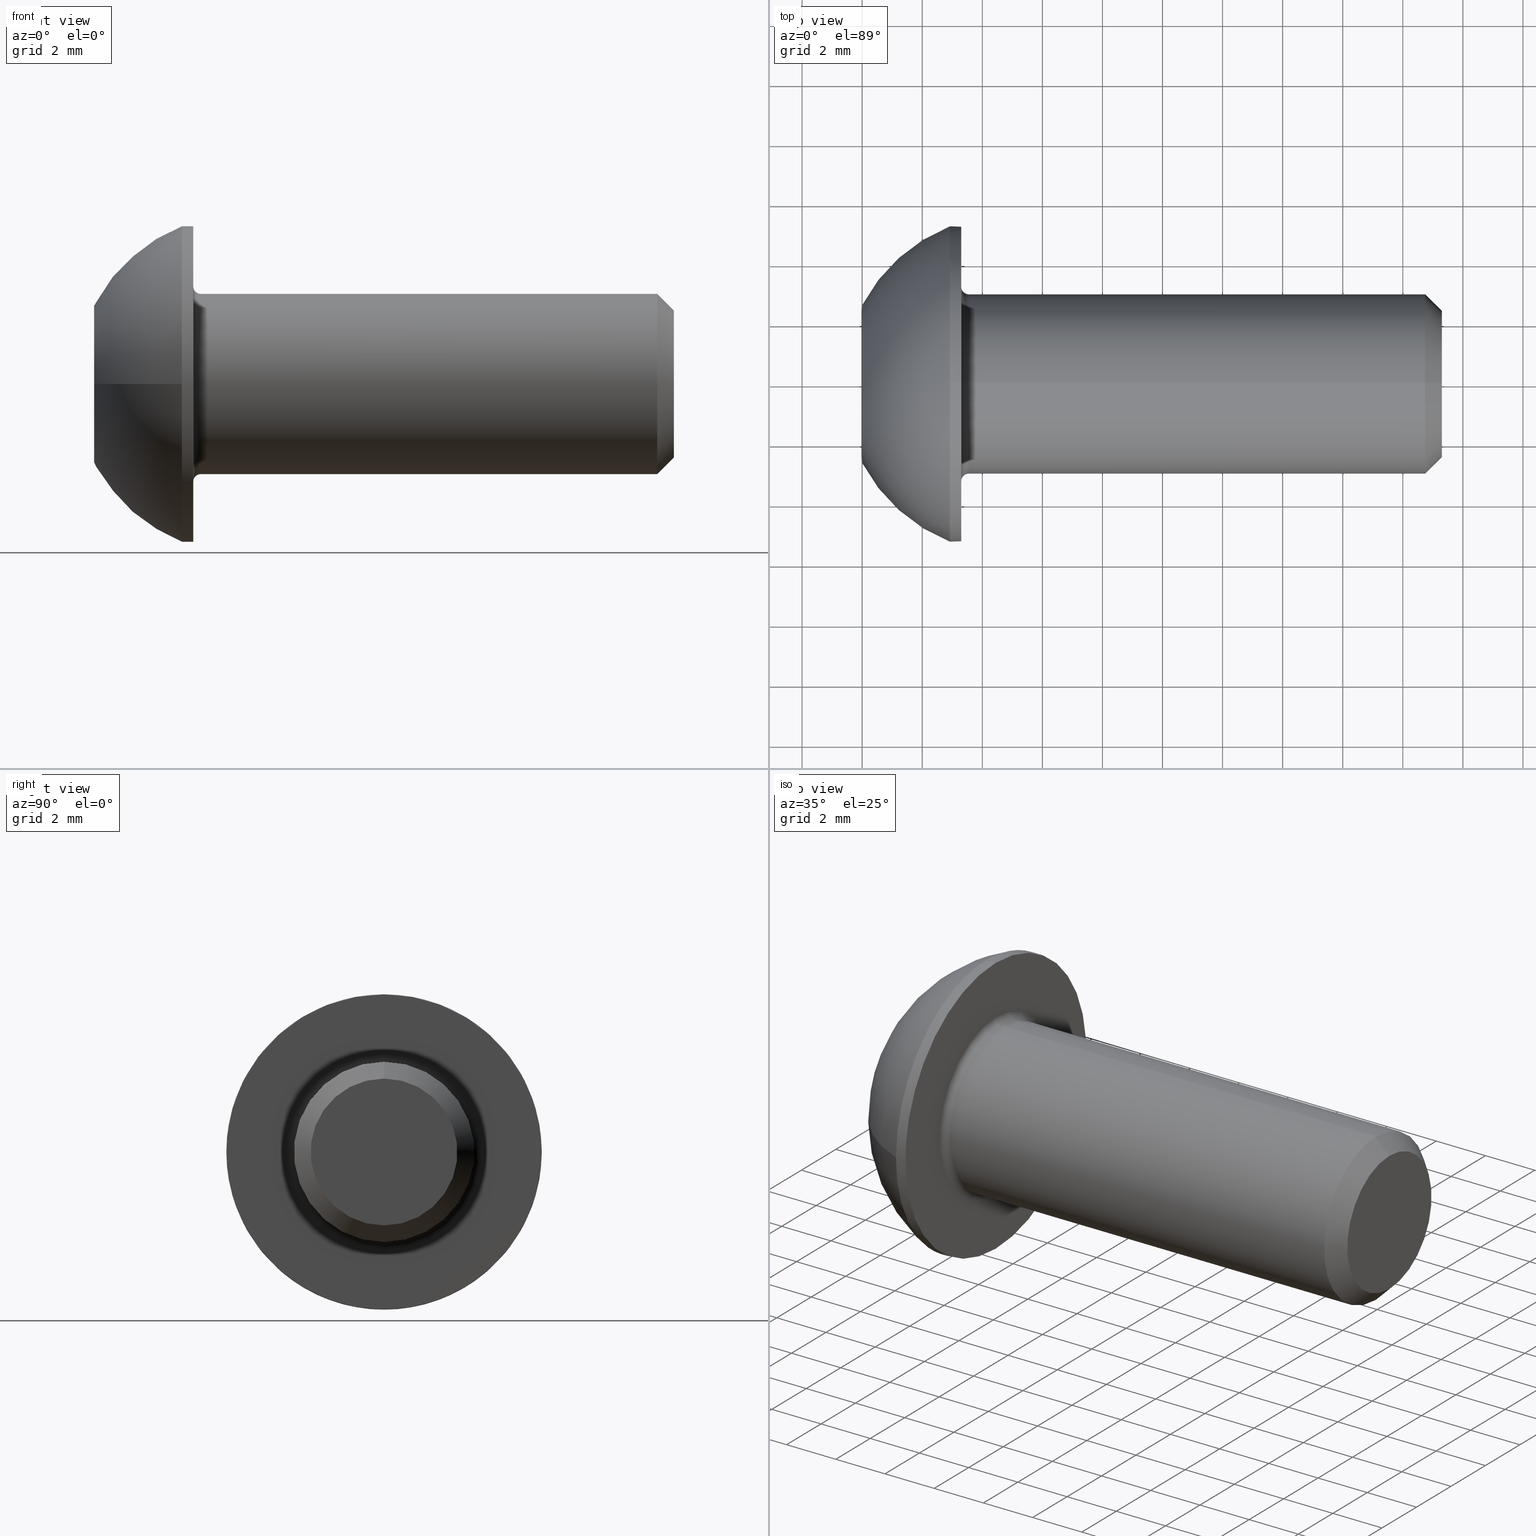
[diagram: canonical four-view strip — front | top / right | iso, engineering-drawing reading convention]
A machine part, canonical four-view strip (front | top / right | iso — engineering-drawing reading convention). The complete STEP part file that produces these views, byte-faithful:
ISO-10303-21;
HEADER;
FILE_DESCRIPTION (( 'STEP AP214' ),
    '1' );
FILE_NAME ('J00.404.006.016.STEP',
    '2024-06-19T13:16:53',
    ( '' ),
    ( '' ),
    'SwSTEP 2.0',
    'SolidWorks 2022',
    '' );
FILE_SCHEMA (( 'AUTOMOTIVE_DESIGN' ));
ENDSEC;

DATA;
#1 = CARTESIAN_POINT ( 'NONE',  ( 19.30000000000000426, 0.000000000000000000, 2.445499999999999563 ) ) ;
#2 = PLANE ( 'NONE',  #251 ) ;
#3 = ADVANCED_FACE ( 'NONE', ( #510 ), #441, .T. ) ;
#4 = ORIENTED_EDGE ( 'NONE', *, *, #465, .T. ) ;
#5 = CARTESIAN_POINT ( 'NONE',  ( 0.000000000000000000, -1.154700538379250796, -2.000000000000000000 ) ) ;
#6 = AXIS2_PLACEMENT_3D ( 'NONE', #772, #754, #289 ) ;
#7 = LINE ( 'NONE', #725, #98 ) ;
#8 = EDGE_LOOP ( 'NONE', ( #663, #534, #306, #684, #52 ) ) ;
#9 = DIRECTION ( 'NONE',  ( 0.000000000000000000, 0.4999999999999979461, 0.8660254037844397068 ) ) ;
#10 = FACE_OUTER_BOUND ( 'NONE', #354, .T. ) ;
#11 = EDGE_CURVE ( 'NONE', #89, #560, #204, .T. ) ;
#12 = CARTESIAN_POINT ( 'NONE',  ( 2.080000000000000071, -7.511572993685797128E-16, -2.000000000000000444 ) ) ;
#13 = DIRECTION ( 'NONE',  ( -1.000000000000000000, -0.000000000000000000, -0.000000000000000000 ) ) ;
#14 = CARTESIAN_POINT ( 'NONE',  ( 3.234700538379264856, 0.000000000000000000, 0.000000000000000000 ) ) ;
#15 = ORIENTED_EDGE ( 'NONE', *, *, #234, .F. ) ;
#16 = DIRECTION ( 'NONE',  ( 0.000000000000000000, -0.4999999999999979461, 0.8660254037844398178 ) ) ;
#17 = ADVANCED_FACE ( 'NONE', ( #271 ), #429, .F. ) ;
#18 = CONICAL_SURFACE ( 'NONE', #72, 1732.050807568857181, 1.047197551196592746 ) ;
#19 = DIRECTION ( 'NONE',  ( -1.000000000000000000, -0.000000000000000000, -0.000000000000000000 ) ) ;
#20 = VECTOR ( 'NONE', #653, 1000.000000000000000 ) ;
#21 = AXIS2_PLACEMENT_3D ( 'NONE', #49, #119, #108 ) ;
#22 = CARTESIAN_POINT ( 'NONE',  ( -996.7652994616207707, 0.000000000000000000, 0.000000000000000000 ) ) ;
#23 =( NAMED_UNIT ( * ) SI_UNIT ( $, .STERADIAN. ) SOLID_ANGLE_UNIT ( ) );
#24 = EDGE_CURVE ( 'NONE', #571, #531, #747, .T. ) ;
#25 = DIRECTION ( 'NONE',  ( 1.000000000000000000, 0.000000000000000000, -0.000000000000000000 ) ) ;
#26 = ORIENTED_EDGE ( 'NONE', *, *, #90, .F. ) ;
#27 = DIRECTION ( 'NONE',  ( 0.000000000000000000, 1.000000000000000000, 0.000000000000000000 ) ) ;
#28 = EDGE_CURVE ( 'NONE', #362, #648, #325, .T. ) ;
#29 = DIRECTION ( 'NONE',  ( -1.000000000000000000, -0.000000000000000000, -0.000000000000000000 ) ) ;
#30 = ORIENTED_EDGE ( 'NONE', *, *, #635, .T. ) ;
#31 = SHAPE_DEFINITION_REPRESENTATION ( #188, #286 ) ;
#32 = AXIS2_PLACEMENT_3D ( 'NONE', #377, #19, #558 ) ;
#33 = VECTOR ( 'NONE', #427, 1000.000000000000000 ) ;
#34 = FACE_OUTER_BOUND ( 'NONE', #485, .T. ) ;
#35 = VECTOR ( 'NONE', #128, 1000.000000000000000 ) ;
#36 = ORIENTED_EDGE ( 'NONE', *, *, #575, .F. ) ;
#37 = DIRECTION ( 'NONE',  ( 0.000000000000000000, 0.8660254037844398178, 0.4999999999999979461 ) ) ;
#38 = CARTESIAN_POINT ( 'NONE',  ( 2.080000000000000071, -1.154700538379250796, -2.000000000000000000 ) ) ;
#39 = EDGE_LOOP ( 'NONE', ( #375, #667 ) ) ;
#40 = ADVANCED_FACE ( 'NONE', ( #393 ), #330, .F. ) ;
#41 = CYLINDRICAL_SURFACE ( 'NONE', #738, 2.999999999999992895 ) ;
#42 = CARTESIAN_POINT ( 'NONE',  ( 0.000000000000000000, 0.000000000000000000, 5.249999999999996447 ) ) ;
#43 = ORIENTED_EDGE ( 'NONE', *, *, #418, .F. ) ;
#44 = EDGE_CURVE ( 'NONE', #146, #476, #410, .T. ) ;
#45 = CARTESIAN_POINT ( 'NONE',  ( 2.080000000000000071, 1.154700538379252794, -2.000000000000000888 ) ) ;
#46 = VECTOR ( 'NONE', #262, 1000.000000000000227 ) ;
#47 = AXIS2_PLACEMENT_3D ( 'NONE', #597, #423, #358 ) ;
#48 = ORIENTED_EDGE ( 'NONE', *, *, #595, .F. ) ;
#49 = CARTESIAN_POINT ( 'NONE',  ( 2.919999999999999929, 0.000000000000000000, 0.000000000000000000 ) ) ;
#50 = ADVANCED_FACE ( 'NONE', ( #499, #214 ), #503, .T. ) ;
#51 = ADVANCED_FACE ( 'NONE', ( #10 ), #18, .F. ) ;
#52 = ORIENTED_EDGE ( 'NONE', *, *, #183, .T. ) ;
#53 = CYLINDRICAL_SURFACE ( 'NONE', #590, 5.249999999999996447 ) ;
#54 = EDGE_CURVE ( 'NONE', #161, #612, #260, .T. ) ;
#55 = ORIENTED_EDGE ( 'NONE', *, *, #110, .F. ) ;
#56 = CARTESIAN_POINT ( 'NONE',  ( 0.000000000000000000, 1.154700538379252572, 2.000000000000000444 ) ) ;
#57 = DIRECTION ( 'NONE',  ( 1.000000000000000000, 0.000000000000000000, 0.000000000000000000 ) ) ;
#58 = ORIENTED_EDGE ( 'NONE', *, *, #293, .F. ) ;
#59 = CIRCLE ( 'NONE', #100, 2.000000000000000000 ) ;
#60 = DIRECTION ( 'NONE',  ( -1.000000000000000000, -0.000000000000000000, -0.000000000000000000 ) ) ;
#61 = DIRECTION ( 'NONE',  ( 0.000000000000000000, -1.000000000000000000, 0.000000000000000000 ) ) ;
#62 = UNCERTAINTY_MEASURE_WITH_UNIT (LENGTH_MEASURE( 1.000000000000000082E-05 ), #346, 'distance_accuracy_value', 'NONE');
#63 = ORIENTED_EDGE ( 'NONE', *, *, #102, .F. ) ;
#64 = DIRECTION ( 'NONE',  ( 0.000000000000000000, 0.000000000000000000, 1.000000000000000000 ) ) ;
#65 = EDGE_CURVE ( 'NONE', #689, #107, #737, .T. ) ;
#66 = CARTESIAN_POINT ( 'NONE',  ( 3.550000000000000266, 0.000000000000000000, 2.999999999999992895 ) ) ;
#67 = ORIENTED_EDGE ( 'NONE', *, *, #54, .T. ) ;
#68 = DIRECTION ( 'NONE',  ( 0.000000000000000000, 5.633679745264346614E-16, -1.000000000000000000 ) ) ;
#69 = CYLINDRICAL_SURFACE ( 'NONE', #380, 5.249999999999996447 ) ;
#70 = ORIENTED_EDGE ( 'NONE', *, *, #355, .F. ) ;
#71 = CARTESIAN_POINT ( 'NONE',  ( 2.080000000000000071, -3.464101615137741508, -1.999999999999999112 ) ) ;
#72 = AXIS2_PLACEMENT_3D ( 'NONE', #22, #88, #335 ) ;
#73 = CIRCLE ( 'NONE', #442, 2.999999999999992895 ) ;
#74 = CYLINDRICAL_SURFACE ( 'NONE', #177, 2.999999999999992895 ) ;
#75 = ORIENTED_EDGE ( 'NONE', *, *, #549, .F. ) ;
#76 = DIRECTION ( 'NONE',  ( -1.000000000000000000, -0.000000000000000000, -0.000000000000000000 ) ) ;
#77 = DIRECTION ( 'NONE',  ( -0.5000000000000042188, 0.000000000000000000, 0.8660254037844361541 ) ) ;
#78 = ADVANCED_FACE ( 'NONE', ( #568 ), #691, .F. ) ;
#79 = CARTESIAN_POINT ( 'NONE',  ( 3.299999999999999822, 0.000000000000000000, 0.000000000000000000 ) ) ;
#80 = ORIENTED_EDGE ( 'NONE', *, *, #85, .T. ) ;
#81 = LINE ( 'NONE', #486, #382 ) ;
#82 = CARTESIAN_POINT ( 'NONE',  ( 0.000000000000000000, 2.309401076758502480, 7.017607234860990640E-28 ) ) ;
#83 = EDGE_CURVE ( 'NONE', #531, #268, #154, .T. ) ;
#84 = ORIENTED_EDGE ( 'NONE', *, *, #102, .T. ) ;
#85 = EDGE_CURVE ( 'NONE', #125, #268, #453, .T. ) ;
#86 = FACE_OUTER_BOUND ( 'NONE', #8, .T. ) ;
#87 = VECTOR ( 'NONE', #666, 1000.000000000000114 ) ;
#88 = DIRECTION ( 'NONE',  ( -1.000000000000000000, -0.000000000000000000, -0.000000000000000000 ) ) ;
#89 = VERTEX_POINT ( 'NONE', #598 ) ;
#90 = EDGE_CURVE ( 'NONE', #139, #436, #502, .T. ) ;
#91 = DIRECTION ( 'NONE',  ( 0.000000000000000000, 0.000000000000000000, -1.000000000000000000 ) ) ;
#92 = CARTESIAN_POINT ( 'NONE',  ( 2.080000000000000071, -2.309401076758495819, -9.940406668478583332E-17 ) ) ;
#93 = ORIENTED_EDGE ( 'NONE', *, *, #44, .T. ) ;
#94 = PRESENTATION_STYLE_ASSIGNMENT (( #685 ) ) ;
#95 = DIRECTION ( 'NONE',  ( -0.000000000000000000, 0.000000000000000000, -1.000000000000000000 ) ) ;
#96 =( NAMED_UNIT ( * ) PLANE_ANGLE_UNIT ( ) SI_UNIT ( $, .RADIAN. ) );
#97 = LINE ( 'NONE', #518, #769 ) ;
#98 = VECTOR ( 'NONE', #133, 1000.000000000000000 ) ;
#99 = APPLICATION_CONTEXT ( 'automotive_design' ) ;
#100 = AXIS2_PLACEMENT_3D ( 'NONE', #425, #179, #656 ) ;
#101 = DIRECTION ( 'NONE',  ( -1.000000000000000000, -0.000000000000000000, -0.000000000000000000 ) ) ;
#102 = EDGE_CURVE ( 'NONE', #707, #712, #370, .T. ) ;
#103 = ORIENTED_EDGE ( 'NONE', *, *, #418, .T. ) ;
#104 = DIRECTION ( 'NONE',  ( 0.000000000000000000, 0.000000000000000000, 1.000000000000000000 ) ) ;
#105 = DIRECTION ( 'NONE',  ( 0.000000000000000000, 0.000000000000000000, -1.000000000000000000 ) ) ;
#106 = ADVANCED_FACE ( 'NONE', ( #472 ), #309, .T. ) ;
#107 = VERTEX_POINT ( 'NONE', #283 ) ;
#108 = DIRECTION ( 'NONE',  ( 0.000000000000000000, 0.000000000000000000, 1.000000000000000000 ) ) ;
#109 = LINE ( 'NONE', #291, #395 ) ;
#110 = EDGE_CURVE ( 'NONE', #314, #488, #581, .T. ) ;
#111 = VECTOR ( 'NONE', #244, 1000.000000000000114 ) ;
#112 = VECTOR ( 'NONE', #717, 1000.000000000000000 ) ;
#113 = VERTEX_POINT ( 'NONE', #164 ) ;
#114 = AXIS2_PLACEMENT_3D ( 'NONE', #668, #734, #376 ) ;
#115 = CARTESIAN_POINT ( 'NONE',  ( 2.080000000000000071, 1.154700538379252572, 2.000000000000000444 ) ) ;
#116 = ADVANCED_FACE ( 'NONE', ( #247 ), #758, .F. ) ;
#117 = ORIENTED_EDGE ( 'NONE', *, *, #333, .T. ) ;
#118 = PRODUCT ( 'J00.404.006.016', 'J00.404.006.016', '', ( #166 ) ) ;
#119 = DIRECTION ( 'NONE',  ( -1.000000000000000000, -0.000000000000000000, -0.000000000000000000 ) ) ;
#120 = CARTESIAN_POINT ( 'NONE',  ( 4.999704623287675176, -7.806255641895631925E-15, 0.000000000000000000 ) ) ;
#121 = ORIENTED_EDGE ( 'NONE', *, *, #364, .T. ) ;
#122 = DIRECTION ( 'NONE',  ( 0.000000000000000000, 1.224646799147353207E-16, -1.000000000000000000 ) ) ;
#123 = CARTESIAN_POINT ( 'NONE',  ( 2.080000000000000071, 1.154700538379252572, 2.000000000000000444 ) ) ;
#124 = ADVANCED_FACE ( 'NONE', ( #231 ), #704, .F. ) ;
#125 = VERTEX_POINT ( 'NONE', #180 ) ;
#126 = PRESENTATION_LAYER_ASSIGNMENT (  '', '', ( #371 ) ) ;
#127 = CIRCLE ( 'NONE', #114, 5.249999999999995559 ) ;
#128 = DIRECTION ( 'NONE',  ( -0.000000000000000000, 1.000000000000000000, -3.755786496842897578E-16 ) ) ;
#129 = DIRECTION ( 'NONE',  ( 0.000000000000000000, 0.000000000000000000, 1.000000000000000000 ) ) ;
#130 = UNCERTAINTY_MEASURE_WITH_UNIT (LENGTH_MEASURE( 1.000000000000000082E-05 ), #278, 'distance_accuracy_value', 'NONE');
#131 = ORIENTED_EDGE ( 'NONE', *, *, #664, .T. ) ;
#132 = DIRECTION ( 'NONE',  ( -1.000000000000000000, -0.000000000000000000, -0.000000000000000000 ) ) ;
#133 = DIRECTION ( 'NONE',  ( -1.000000000000000000, 0.000000000000000000, 0.000000000000000000 ) ) ;
#134 = VERTEX_POINT ( 'NONE', #603 ) ;
#135 = EDGE_CURVE ( 'NONE', #689, #113, #182, .T. ) ;
#136 = CARTESIAN_POINT ( 'NONE',  ( 2.080000000000000071, -1.732050807568879858, -0.9999999999999958922 ) ) ;
#137 = EDGE_CURVE ( 'NONE', #424, #488, #657, .T. ) ;
#138 = CARTESIAN_POINT ( 'NONE',  ( 18.74550000000001759, 3.673940397442050500E-16, -2.999999999999992450 ) ) ;
#139 = VERTEX_POINT ( 'NONE', #428 ) ;
#140 = FACE_OUTER_BOUND ( 'NONE', #237, .T. ) ;
#141 = VECTOR ( 'NONE', #321, 1000.000000000000000 ) ;
#142 = AXIS2_PLACEMENT_3D ( 'NONE', #500, #311, #544 ) ;
#143 = FACE_OUTER_BOUND ( 'NONE', #696, .T. ) ;
#144 = COLOUR_RGB ( '',0.6509803921568627638, 0.6196078431372549211, 0.5882352941176470784 ) ;
#145 = ORIENTED_EDGE ( 'NONE', *, *, #599, .F. ) ;
#146 = VERTEX_POINT ( 'NONE', #542 ) ;
#147 = CARTESIAN_POINT ( 'NONE',  ( 0.000000000000000000, -2.309401076758495819, -9.940406668478583332E-17 ) ) ;
#148 = CARTESIAN_POINT ( 'NONE',  ( 0.000000000000000000, 2.309401076758502480, 7.017607234860990640E-28 ) ) ;
#149 = CARTESIAN_POINT ( 'NONE',  ( 3.550000000000000266, 3.980102097228888864E-16, -3.249999999999992450 ) ) ;
#150 = CARTESIAN_POINT ( 'NONE',  ( 8.673617379884035472E-16, 2.625000000000000000, 0.000000000000000000 ) ) ;
#151 = DIRECTION ( 'NONE',  ( -0.5000000000000042188, 1.060575238724903710E-16, -0.8660254037844361541 ) ) ;
#152 = ORIENTED_EDGE ( 'NONE', *, *, #312, .T. ) ;
#153 =( NAMED_UNIT ( * ) PLANE_ANGLE_UNIT ( ) SI_UNIT ( $, .RADIAN. ) );
#154 = CIRCLE ( 'NONE', #700, 2.999999999999992895 ) ;
#155 =( LENGTH_UNIT ( ) NAMED_UNIT ( * ) SI_UNIT ( .MILLI., .METRE. ) );
#156 = CIRCLE ( 'NONE', #230, 5.646916974785816556 ) ;
#157 = CIRCLE ( 'NONE', #457, 2.445499999999999563 ) ;
#158 = CARTESIAN_POINT ( 'NONE',  ( 3.550000000000000266, 0.000000000000000000, 0.000000000000000000 ) ) ;
#159 = APPLICATION_PROTOCOL_DEFINITION ( 'draft international standard', 'automotive_design', 1998, #99 ) ;
#160 = DIRECTION ( 'NONE',  ( 0.000000000000000000, 0.000000000000000000, 1.000000000000000000 ) ) ;
#161 = VERTEX_POINT ( 'NONE', #345 ) ;
#162 = FILL_AREA_STYLE_COLOUR ( '', #144 ) ;
#163 = SURFACE_STYLE_FILL_AREA ( #348 ) ;
#164 = CARTESIAN_POINT ( 'NONE',  ( 2.080000000000000071, -1.154700538379250796, -2.000000000000000000 ) ) ;
#165 = VERTEX_POINT ( 'NONE', #775 ) ;
#166 = PRODUCT_CONTEXT ( 'NONE', #644, 'mechanical' ) ;
#167 = EDGE_CURVE ( 'NONE', #707, #223, #574, .T. ) ;
#168 = CARTESIAN_POINT ( 'NONE',  ( 3.550000000000000266, 0.000000000000000000, 0.000000000000000000 ) ) ;
#169 = ORIENTED_EDGE ( 'NONE', *, *, #449, .F. ) ;
#170 = DIRECTION ( 'NONE',  ( 0.000000000000000000, 0.000000000000000000, 1.000000000000000000 ) ) ;
#171 = ADVANCED_FACE ( 'NONE', ( #34 ), #331, .F. ) ;
#172 = ORIENTED_EDGE ( 'NONE', *, *, #549, .T. ) ;
#173 = DIRECTION ( 'NONE',  ( 0.000000000000000000, 0.000000000000000000, 1.000000000000000000 ) ) ;
#174 = EDGE_LOOP ( 'NONE', ( #227, #152, #287, #336, #58 ) ) ;
#175 = PRODUCT_RELATED_PRODUCT_CATEGORY ( 'part', '', ( #118 ) ) ;
#176 = LINE ( 'NONE', #115, #640 ) ;
#177 = AXIS2_PLACEMENT_3D ( 'NONE', #740, #250, #201 ) ;
#178 = ORIENTED_EDGE ( 'NONE', *, *, #471, .T. ) ;
#179 = DIRECTION ( 'NONE',  ( -1.000000000000000000, -0.000000000000000000, -0.000000000000000000 ) ) ;
#180 = CARTESIAN_POINT ( 'NONE',  ( 3.299999999999999822, 0.000000000000000000, 3.249999999999992450 ) ) ;
#181 = ORIENTED_EDGE ( 'NONE', *, *, #368, .F. ) ;
#182 = LINE ( 'NONE', #38, #292 ) ;
#183 = EDGE_CURVE ( 'NONE', #107, #134, #550, .T. ) ;
#184 = ORIENTED_EDGE ( 'NONE', *, *, #355, .T. ) ;
#185 = FACE_OUTER_BOUND ( 'NONE', #446, .T. ) ;
#186 = CARTESIAN_POINT ( 'NONE',  ( 19.30000000000000426, 0.000000000000000000, 0.000000000000000000 ) ) ;
#187 = EDGE_CURVE ( 'NONE', #560, #572, #584, .T. ) ;
#188 = PRODUCT_DEFINITION_SHAPE ( 'NONE', 'NONE',  #401 ) ;
#189 = EDGE_LOOP ( 'NONE', ( #605, #752, #516, #145 ) ) ;
#190 = VECTOR ( 'NONE', #392, 1000.000000000000000 ) ;
#191 = CARTESIAN_POINT ( 'NONE',  ( 2.080000000000000071, -2.309401076758495819, -9.940406668478583332E-17 ) ) ;
#192 = CARTESIAN_POINT ( 'NONE',  ( 2.080000000000000071, -2.309401076758495819, -9.940406668478583332E-17 ) ) ;
#193 = UNCERTAINTY_MEASURE_WITH_UNIT (LENGTH_MEASURE( 1.000000000000000082E-05 ), #155, 'distance_accuracy_value', 'NONE');
#194 = EDGE_LOOP ( 'NONE', ( #559, #408, #80, #284 ) ) ;
#195 = EDGE_CURVE ( 'NONE', #688, #436, #536, .T. ) ;
#196 = CARTESIAN_POINT ( 'NONE',  ( 0.000000000000000000, 6.429395695523600208E-16, -5.249999999999996447 ) ) ;
#197 = DIRECTION ( 'NONE',  ( -1.000000000000000000, 0.000000000000000000, -0.000000000000000000 ) ) ;
#198 = ORIENTED_EDGE ( 'NONE', *, *, #757, .F. ) ;
#199 = CARTESIAN_POINT ( 'NONE',  ( 2.080000000000000071, 0.000000000000000000, 0.000000000000000000 ) ) ;
#200 = EDGE_CURVE ( 'NONE', #773, #314, #7, .T. ) ;
#201 = DIRECTION ( 'NONE',  ( 0.000000000000000000, 0.000000000000000000, 1.000000000000000000 ) ) ;
#202 = ORIENTED_EDGE ( 'NONE', *, *, #137, .T. ) ;
#203 = DIRECTION ( 'NONE',  ( 0.000000000000000000, 1.000000000000000000, 5.633679745264346614E-16 ) ) ;
#204 = CIRCLE ( 'NONE', #602, 5.249999999999995559 ) ;
#205 = CIRCLE ( 'NONE', #411, 3.249999999999992450 ) ;
#206 = DIRECTION ( 'NONE',  ( -1.000000000000000000, -0.000000000000000000, -0.000000000000000000 ) ) ;
#207 = AXIS2_PLACEMENT_3D ( 'NONE', #191, #373, #9 ) ;
#208 = DIRECTION ( 'NONE',  ( 0.000000000000000000, -0.8660254037844390407, -0.4999999999999992784 ) ) ;
#209 = DIRECTION ( 'NONE',  ( 0.000000000000000000, 0.000000000000000000, 1.000000000000000000 ) ) ;
#210 = ADVANCED_FACE ( 'NONE', ( #490, #670 ), #2, .F. ) ;
#211 = EDGE_LOOP ( 'NONE', ( #169, #181, #70 ) ) ;
#212 = ORIENTED_EDGE ( 'NONE', *, *, #509, .F. ) ;
#213 =( NAMED_UNIT ( * ) PLANE_ANGLE_UNIT ( ) SI_UNIT ( $, .RADIAN. ) );
#214 = FACE_BOUND ( 'NONE', #658, .T. ) ;
#215 = ORIENTED_EDGE ( 'NONE', *, *, #293, .T. ) ;
#216 = DIRECTION ( 'NONE',  ( 1.000000000000000000, 0.000000000000000000, 0.000000000000000000 ) ) ;
#217 = FILL_AREA_STYLE_COLOUR ( '', #253 ) ;
#218 = DIRECTION ( 'NONE',  ( 0.000000000000000000, 0.000000000000000000, 1.000000000000000000 ) ) ;
#219 = EDGE_CURVE ( 'NONE', #572, #139, #394, .T. ) ;
#220 = ORIENTED_EDGE ( 'NONE', *, *, #339, .F. ) ;
#221 = DIRECTION ( 'NONE',  ( 1.000000000000000000, 0.000000000000000000, -0.000000000000000000 ) ) ;
#222 = DIRECTION ( 'NONE',  ( -1.000000000000000000, 0.000000000000000000, -0.000000000000000000 ) ) ;
#223 = VERTEX_POINT ( 'NONE', #138 ) ;
#224 =( NAMED_UNIT ( * ) SI_UNIT ( $, .STERADIAN. ) SOLID_ANGLE_UNIT ( ) );
#225 = DIRECTION ( 'NONE',  ( -0.000000000000000000, -1.000000000000000000, -5.633679745264346614E-16 ) ) ;
#226 = DIRECTION ( 'NONE',  ( -1.000000000000000000, 0.000000000000000000, 0.000000000000000000 ) ) ;
#227 = ORIENTED_EDGE ( 'NONE', *, *, #368, .T. ) ;
#228 = DIRECTION ( 'NONE',  ( 0.000000000000000000, 3.755786496842897578E-16, 1.000000000000000000 ) ) ;
#229 = VECTOR ( 'NONE', #341, 1000.000000000000000 ) ;
#230 = AXIS2_PLACEMENT_3D ( 'NONE', #297, #122, #708 ) ;
#231 = FACE_OUTER_BOUND ( 'NONE', #211, .T. ) ;
#232 = ORIENTED_EDGE ( 'NONE', *, *, #183, .F. ) ;
#233 = FACE_OUTER_BOUND ( 'NONE', #642, .T. ) ;
#234 = EDGE_CURVE ( 'NONE', #298, #107, #548, .T. ) ;
#235 = ORIENTED_EDGE ( 'NONE', *, *, #669, .T. ) ;
#236 = PLANE ( 'NONE',  #420 ) ;
#237 = EDGE_LOOP ( 'NONE', ( #310, #84, #172, #426 ) ) ;
#238 = DIRECTION ( 'NONE',  ( 0.000000000000000000, 0.000000000000000000, 1.000000000000000000 ) ) ;
#239 = AXIS2_PLACEMENT_3D ( 'NONE', #186, #222, #654 ) ;
#240 = VECTOR ( 'NONE', #269, 1000.000000000000227 ) ;
#241 = ORIENTED_EDGE ( 'NONE', *, *, #693, .F. ) ;
#242 = CARTESIAN_POINT ( 'NONE',  ( 0.000000000000000000, 0.000000000000000000, 0.000000000000000000 ) ) ;
#243 = EDGE_CURVE ( 'NONE', #612, #721, #267, .T. ) ;
#244 = DIRECTION ( 'NONE',  ( -0.000000000000000000, -0.4999999999999992784, 0.8660254037844390407 ) ) ;
#245 = ORIENTED_EDGE ( 'NONE', *, *, #720, .F. ) ;
#246 = LINE ( 'NONE', #323, #35 ) ;
#247 = FACE_OUTER_BOUND ( 'NONE', #655, .T. ) ;
#248 = ORIENTED_EDGE ( 'NONE', *, *, #735, .T. ) ;
#249 = LINE ( 'NONE', #196, #112 ) ;
#250 = DIRECTION ( 'NONE',  ( -1.000000000000000000, -0.000000000000000000, -0.000000000000000000 ) ) ;
#251 = AXIS2_PLACEMENT_3D ( 'NONE', #662, #197, #494 ) ;
#252 = ORIENTED_EDGE ( 'NONE', *, *, #11, .T. ) ;
#253 = COLOUR_RGB ( '',0.6509803921568627638, 0.6196078431372549211, 0.5882352941176470784 ) ;
#254 = AXIS2_PLACEMENT_3D ( 'NONE', #273, #37, #16 ) ;
#255 = DIRECTION ( 'NONE',  ( -1.000000000000000000, -0.000000000000000000, -0.000000000000000000 ) ) ;
#256 = DIRECTION ( 'NONE',  ( -1.000000000000000000, -0.000000000000000000, -0.000000000000000000 ) ) ;
#257 = ORIENTED_EDGE ( 'NONE', *, *, #635, .F. ) ;
#258 = LINE ( 'NONE', #383, #650 ) ;
#259 = CARTESIAN_POINT ( 'NONE',  ( 3.550000000000000266, 0.000000000000000000, 0.000000000000000000 ) ) ;
#260 = LINE ( 'NONE', #92, #229 ) ;
#261 = DIRECTION ( 'NONE',  ( 0.000000000000000000, 0.000000000000000000, 1.000000000000000000 ) ) ;
#262 = DIRECTION ( 'NONE',  ( -0.000000000000000000, 0.4999999999999978906, -0.8660254037844399289 ) ) ;
#263 = DIRECTION ( 'NONE',  ( -0.000000000000000000, 0.000000000000000000, -1.000000000000000000 ) ) ;
#264 = ORIENTED_EDGE ( 'NONE', *, *, #270, .T. ) ;
#265 = CIRCLE ( 'NONE', #504, 2.999999999999992450 ) ;
#266 = ADVANCED_FACE ( 'NONE', ( #618 ), #74, .T. ) ;
#267 = LINE ( 'NONE', #673, #46 ) ;
#268 = VERTEX_POINT ( 'NONE', #66 ) ;
#269 = DIRECTION ( 'NONE',  ( -0.000000000000000000, 0.4999999999999978906, -0.8660254037844399289 ) ) ;
#270 = EDGE_CURVE ( 'NONE', #362, #134, #614, .T. ) ;
#271 = FACE_OUTER_BOUND ( 'NONE', #194, .T. ) ;
#272 = ORIENTED_EDGE ( 'NONE', *, *, #137, .F. ) ;
#273 = CARTESIAN_POINT ( 'NONE',  ( 2.080000000000000071, -1.154700538379250796, -2.000000000000000000 ) ) ;
#274 = CARTESIAN_POINT ( 'NONE',  ( 2.080000000000000071, -1.154700538379251018, 1.999999999999999112 ) ) ;
#275 = EDGE_CURVE ( 'NONE', #365, #223, #649, .T. ) ;
#276 = CARTESIAN_POINT ( 'NONE',  ( 2.080000000000000071, -3.464101615137741508, -1.999999999999999112 ) ) ;
#277 = ADVANCED_FACE ( 'NONE', ( #729 ), #69, .T. ) ;
#278 =( LENGTH_UNIT ( ) NAMED_UNIT ( * ) SI_UNIT ( .MILLI., .METRE. ) );
#279 = AXIS2_PLACEMENT_3D ( 'NONE', #501, #256, #129 ) ;
#280 = CARTESIAN_POINT ( 'NONE',  ( 3.234700538379264856, 0.000000000000000000, 0.000000000000000000 ) ) ;
#281 = CONICAL_SURFACE ( 'NONE', #319, 2.445499999999999563, 0.7853981633974547183 ) ;
#282 = AXIS2_PLACEMENT_3D ( 'NONE', #437, #621, #607 ) ;
#283 = CARTESIAN_POINT ( 'NONE',  ( 2.080000000000000071, -1.732050807568876749, 0.9999999999999943379 ) ) ;
#284 = ORIENTED_EDGE ( 'NONE', *, *, #83, .F. ) ;
#285 = FACE_OUTER_BOUND ( 'NONE', #422, .T. ) ;
#286 = ADVANCED_BREP_SHAPE_REPRESENTATION ( 'J00.404.006.016', ( #340, #421 ), #295 ) ;
#287 = ORIENTED_EDGE ( 'NONE', *, *, #200, .T. ) ;
#288 = CARTESIAN_POINT ( 'NONE',  ( 2.080000000000000071, -3.464101615137741508, -1.999999999999999112 ) ) ;
#289 = DIRECTION ( 'NONE',  ( 0.000000000000000000, 0.000000000000000000, 1.000000000000000000 ) ) ;
#290 = EDGE_LOOP ( 'NONE', ( #616, #257, #569 ) ) ;
#291 = CARTESIAN_POINT ( 'NONE',  ( 2.080000000000000071, -1.154700538379251018, 1.999999999999999112 ) ) ;
#292 = VECTOR ( 'NONE', #484, 1000.000000000000227 ) ;
#293 = EDGE_CURVE ( 'NONE', #165, #528, #374, .T. ) ;
#294 = AXIS2_PLACEMENT_3D ( 'NONE', #508, #91, #27 ) ;
#295 =( GEOMETRIC_REPRESENTATION_CONTEXT ( 3 ) GLOBAL_UNCERTAINTY_ASSIGNED_CONTEXT ( ( #62 ) ) GLOBAL_UNIT_ASSIGNED_CONTEXT ( ( #346, #96, #224 ) ) REPRESENTATION_CONTEXT ( 'NONE', 'WORKASPACE' ) );
#296 = ORIENTED_EDGE ( 'NONE', *, *, #595, .T. ) ;
#297 = CARTESIAN_POINT ( 'NONE',  ( 4.999704623287675176, -7.806255641895631925E-15, 0.000000000000000000 ) ) ;
#298 = VERTEX_POINT ( 'NONE', #555 ) ;
#299 = CARTESIAN_POINT ( 'NONE',  ( 0.000000000000000000, 1.154700538379252794, -2.000000000000000888 ) ) ;
#300 = EDGE_CURVE ( 'NONE', #268, #531, #73, .T. ) ;
#301 = VERTEX_POINT ( 'NONE', #439 ) ;
#302 = CARTESIAN_POINT ( 'NONE',  ( 19.30000000000000426, 0.000000000000000000, 2.445499999999999563 ) ) ;
#303 = CARTESIAN_POINT ( 'NONE',  ( 0.000000000000000000, 1.154700538379252572, 2.000000000000000444 ) ) ;
#304 = AXIS2_PLACEMENT_3D ( 'NONE', #749, #739, #403 ) ;
#305 = CIRCLE ( 'NONE', #468, 5.249999999999997335 ) ;
#306 = ORIENTED_EDGE ( 'NONE', *, *, #714, .T. ) ;
#307 = ADVANCED_FACE ( 'NONE', ( #143 ), #517, .T. ) ;
#308 = DIRECTION ( 'NONE',  ( 1.000000000000000000, 0.000000000000000000, -0.000000000000000000 ) ) ;
#309 = SPHERICAL_SURFACE ( 'NONE', #515, 5.646916974785816556 ) ;
#310 = ORIENTED_EDGE ( 'NONE', *, *, #167, .F. ) ;
#311 = DIRECTION ( 'NONE',  ( -1.000000000000000000, -0.000000000000000000, -0.000000000000000000 ) ) ;
#312 = EDGE_CURVE ( 'NONE', #476, #773, #324, .T. ) ;
#313 = DIRECTION ( 'NONE',  ( -0.000000000000000000, 0.4999999999999991118, 0.8660254037844391517 ) ) ;
#314 = VERTEX_POINT ( 'NONE', #148 ) ;
#315 = CARTESIAN_POINT ( 'NONE',  ( 19.30000000000000426, 0.000000000000000000, 0.000000000000000000 ) ) ;
#316 = CARTESIAN_POINT ( 'NONE',  ( 2.080000000000000071, -2.309401076758495819, -9.940406668478583332E-17 ) ) ;
#317 = AXIS2_PLACEMENT_3D ( 'NONE', #351, #61, #105 ) ;
#318 = ORIENTED_EDGE ( 'NONE', *, *, #680, .F. ) ;
#319 = AXIS2_PLACEMENT_3D ( 'NONE', #665, #132, #261 ) ;
#320 = DIRECTION ( 'NONE',  ( -0.000000000000000000, -1.000000000000000000, -5.633679745264346614E-16 ) ) ;
#321 = DIRECTION ( 'NONE',  ( -1.000000000000000000, 0.000000000000000000, 0.000000000000000000 ) ) ;
#322 = CARTESIAN_POINT ( 'NONE',  ( 3.550000000000000266, 0.000000000000000000, 0.000000000000000000 ) ) ;
#323 = CARTESIAN_POINT ( 'NONE',  ( 0.000000000000000000, 1.154700538379252794, -2.000000000000000888 ) ) ;
#324 = LINE ( 'NONE', #444, #675 ) ;
#325 = LINE ( 'NONE', #14, #467 ) ;
#326 = EDGE_CURVE ( 'NONE', #528, #314, #389, .T. ) ;
#327 = ORIENTED_EDGE ( 'NONE', *, *, #243, .F. ) ;
#328 = PLANE ( 'NONE',  #551 ) ;
#329 = CARTESIAN_POINT ( 'NONE',  ( 8.673617379884035472E-16, 0.000000000000000000, 0.000000000000000000 ) ) ;
#330 = PLANE ( 'NONE',  #699 ) ;
#331 = TOROIDAL_SURFACE ( 'NONE', #759, 3.249999999999992450, 0.2500000000000000000 ) ;
#332 = ORIENTED_EDGE ( 'NONE', *, *, #90, .T. ) ;
#333 = EDGE_CURVE ( 'NONE', #107, #161, #545, .T. ) ;
#334 = SPHERICAL_SURFACE ( 'NONE', #294, 5.646916974785816556 ) ;
#335 = DIRECTION ( 'NONE',  ( 0.000000000000000000, 0.000000000000000000, 1.000000000000000000 ) ) ;
#336 = ORIENTED_EDGE ( 'NONE', *, *, #326, .F. ) ;
#337 = FILL_AREA_STYLE ('',( #162 ) ) ;
#338 = SURFACE_SIDE_STYLE ('',( #163 ) ) ;
#339 = EDGE_CURVE ( 'NONE', #511, #612, #406, .T. ) ;
#340 = MANIFOLD_SOLID_BREP ( 'Hex', #359 ) ;
#341 = DIRECTION ( 'NONE',  ( -1.000000000000000000, 0.000000000000000000, 0.000000000000000000 ) ) ;
#342 = ORIENTED_EDGE ( 'NONE', *, *, #24, .T. ) ;
#343 = DIRECTION ( 'NONE',  ( 0.000000000000000000, 0.000000000000000000, 1.000000000000000000 ) ) ;
#344 = EDGE_CURVE ( 'NONE', #134, #298, #641, .T. ) ;
#345 = CARTESIAN_POINT ( 'NONE',  ( 2.080000000000000071, -2.309401076758495819, -9.940406668478583332E-17 ) ) ;
#346 =( LENGTH_UNIT ( ) NAMED_UNIT ( * ) SI_UNIT ( .MILLI., .METRE. ) );
#347 = AXIS2_PLACEMENT_3D ( 'NONE', #149, #390, #623 ) ;
#348 = FILL_AREA_STYLE ('',( #217 ) ) ;
#349 = VECTOR ( 'NONE', #225, 1000.000000000000000 ) ;
#350 = MECHANICAL_DESIGN_GEOMETRIC_PRESENTATION_REPRESENTATION (  '', ( #676 ), #552 ) ;
#351 = CARTESIAN_POINT ( 'NONE',  ( 3.550000000000000266, 0.000000000000000000, 3.249999999999992450 ) ) ;
#352 = DIRECTION ( 'NONE',  ( -1.000000000000000000, -0.000000000000000000, -0.000000000000000000 ) ) ;
#353 = DIRECTION ( 'NONE',  ( 0.000000000000000000, 0.000000000000000000, 1.000000000000000000 ) ) ;
#354 = EDGE_LOOP ( 'NONE', ( #585, #264, #248, #93, #577 ) ) ;
#355 = EDGE_CURVE ( 'NONE', #648, #165, #97, .T. ) ;
#356 = CARTESIAN_POINT ( 'NONE',  ( 0.000000000000000000, 0.000000000000000000, 2.999999999999992895 ) ) ;
#357 = EDGE_LOOP ( 'NONE', ( #131, #184, #215, #245, #743 ) ) ;
#358 = DIRECTION ( 'NONE',  ( 0.000000000000000000, -0.4999999999999990563, -0.8660254037844391517 ) ) ;
#359 = CLOSED_SHELL ( 'NONE', ( #445, #171, #307, #396, #586, #106, #50, #438, #277, #210, #266, #633, #116, #17, #741, #765, #533, #582, #3, #683, #124, #624, #78, #530, #40, #385, #51 ) ) ;
#360 = AXIS2_PLACEMENT_3D ( 'NONE', #469, #703, #170 ) ;
#361 = CIRCLE ( 'NONE', #282, 3.249999999999992450 ) ;
#362 = VERTEX_POINT ( 'NONE', #280 ) ;
#363 = FACE_OUTER_BOUND ( 'NONE', #174, .T. ) ;
#364 = EDGE_CURVE ( 'NONE', #139, #301, #305, .T. ) ;
#365 = VERTEX_POINT ( 'NONE', #580 ) ;
#366 = PLANE ( 'NONE',  #661 ) ;
#367 = CARTESIAN_POINT ( 'NONE',  ( 4.999704623287675176, -7.806255641895631925E-15, 0.000000000000000000 ) ) ;
#368 = EDGE_CURVE ( 'NONE', #165, #476, #751, .T. ) ;
#369 = EDGE_LOOP ( 'NONE', ( #496, #692, #202, #55, #761 ) ) ;
#370 = CIRCLE ( 'NONE', #6, 2.445499999999999563 ) ;
#371 = STYLED_ITEM ( 'NONE', ( #94 ), #340 ) ;
#372 = ORIENTED_EDGE ( 'NONE', *, *, #714, .F. ) ;
#373 = DIRECTION ( 'NONE',  ( 0.000000000000000000, 0.8660254037844398178, -0.4999999999999980016 ) ) ;
#374 = LINE ( 'NONE', #736, #141 ) ;
#375 = ORIENTED_EDGE ( 'NONE', *, *, #475, .T. ) ;
#376 = DIRECTION ( 'NONE',  ( 0.000000000000000000, 0.000000000000000000, 1.000000000000000000 ) ) ;
#377 = CARTESIAN_POINT ( 'NONE',  ( 2.919999999999999929, 0.000000000000000000, 0.000000000000000000 ) ) ;
#378 = ORIENTED_EDGE ( 'NONE', *, *, #487, .F. ) ;
#379 = FACE_OUTER_BOUND ( 'NONE', #459, .T. ) ;
#380 = AXIS2_PLACEMENT_3D ( 'NONE', #505, #13, #209 ) ;
#381 = ORIENTED_EDGE ( 'NONE', *, *, #364, .F. ) ;
#382 = VECTOR ( 'NONE', #554, 1000.000000000000000 ) ;
#383 = CARTESIAN_POINT ( 'NONE',  ( 2.080000000000000071, -1.154700538379251018, 1.999999999999999112 ) ) ;
#384 = CARTESIAN_POINT ( 'NONE',  ( 19.30000000000000426, 0.000000000000000000, 0.000000000000000000 ) ) ;
#385 = ADVANCED_FACE ( 'NONE', ( #285 ), #756, .F. ) ;
#386 = DIRECTION ( 'NONE',  ( -1.000000000000000000, -0.000000000000000000, -0.000000000000000000 ) ) ;
#387 = ORIENTED_EDGE ( 'NONE', *, *, #167, .T. ) ;
#388 = DIRECTION ( 'NONE',  ( 0.000000000000000000, 0.000000000000000000, 1.000000000000000000 ) ) ;
#389 = LINE ( 'NONE', #82, #526 ) ;
#390 = DIRECTION ( 'NONE',  ( -0.000000000000000000, 1.000000000000000000, 1.224646799147353207E-16 ) ) ;
#391 = ORIENTED_EDGE ( 'NONE', *, *, #669, .F. ) ;
#392 = DIRECTION ( 'NONE',  ( -0.000000000000000000, 0.4999999999999991118, 0.8660254037844391517 ) ) ;
#393 = FACE_OUTER_BOUND ( 'NONE', #632, .T. ) ;
#394 = CIRCLE ( 'NONE', #32, 5.249999999999997335 ) ;
#395 = VECTOR ( 'NONE', #770, 1000.000000000000000 ) ;
#396 = ADVANCED_FACE ( 'NONE', ( #520 ), #41, .T. ) ;
#397 = PRESENTATION_LAYER_ASSIGNMENT (  '', '', ( #676 ) ) ;
#398 = DIRECTION ( 'NONE',  ( -0.000000000000000000, 0.000000000000000000, -1.000000000000000000 ) ) ;
#399 = DIRECTION ( 'NONE',  ( 1.000000000000000000, 0.000000000000000000, -0.000000000000000000 ) ) ;
#400 = ORIENTED_EDGE ( 'NONE', *, *, #637, .F. ) ;
#401 = PRODUCT_DEFINITION ( 'UNKNOWN', '', #565, #719 ) ;
#402 =( NAMED_UNIT ( * ) SI_UNIT ( $, .STERADIAN. ) SOLID_ANGLE_UNIT ( ) );
#403 = DIRECTION ( 'NONE',  ( -0.000000000000000000, 0.000000000000000000, 1.000000000000000000 ) ) ;
#404 = ORIENTED_EDGE ( 'NONE', *, *, #300, .T. ) ;
#405 = PRESENTATION_STYLE_ASSIGNMENT (( #455 ) ) ;
#406 = LINE ( 'NONE', #464, #760 ) ;
#407 = DIRECTION ( 'NONE',  ( -1.000000000000000000, -0.000000000000000000, -0.000000000000000000 ) ) ;
#408 = ORIENTED_EDGE ( 'NONE', *, *, #475, .F. ) ;
#409 = CARTESIAN_POINT ( 'NONE',  ( 2.080000000000000071, 2.309401076758502480, 7.017607234860990640E-28 ) ) ;
#410 = CIRCLE ( 'NONE', #626, 2.000000000000000000 ) ;
#411 = AXIS2_PLACEMENT_3D ( 'NONE', #527, #483, #591 ) ;
#412 = DIRECTION ( 'NONE',  ( 0.000000000000000000, 0.000000000000000000, 1.000000000000000000 ) ) ;
#413 = EDGE_LOOP ( 'NONE', ( #318, #767 ) ) ;
#414 = LINE ( 'NONE', #479, #20 ) ;
#415 = EDGE_CURVE ( 'NONE', #223, #531, #694, .T. ) ;
#416 = ORIENTED_EDGE ( 'NONE', *, *, #509, .T. ) ;
#417 = DIRECTION ( 'NONE',  ( 0.000000000000000000, -1.000000000000000000, 3.755786496842897578E-16 ) ) ;
#418 = EDGE_CURVE ( 'NONE', #161, #689, #634, .T. ) ;
#419 = FACE_OUTER_BOUND ( 'NONE', #620, .T. ) ;
#420 = AXIS2_PLACEMENT_3D ( 'NONE', #706, #308, #764 ) ;
#421 = AXIS2_PLACEMENT_3D ( 'NONE', #463, #343, #216 ) ;
#422 = EDGE_LOOP ( 'NONE', ( #372, #473, #671 ) ) ;
#423 = DIRECTION ( 'NONE',  ( 0.000000000000000000, -0.8660254037844391517, 0.4999999999999990563 ) ) ;
#424 = VERTEX_POINT ( 'NONE', #630 ) ;
#425 = CARTESIAN_POINT ( 'NONE',  ( 2.080000000000000071, 0.000000000000000000, 0.000000000000000000 ) ) ;
#426 = ORIENTED_EDGE ( 'NONE', *, *, #471, .F. ) ;
#427 = DIRECTION ( 'NONE',  ( -0.000000000000000000, 1.000000000000000000, -3.755786496842897578E-16 ) ) ;
#428 = CARTESIAN_POINT ( 'NONE',  ( 2.919999999999999929, 5.249999999999997335, 0.000000000000000000 ) ) ;
#429 = TOROIDAL_SURFACE ( 'NONE', #576, 3.249999999999992450, 0.2500000000000000000 ) ;
#430 = ORIENTED_EDGE ( 'NONE', *, *, #575, .T. ) ;
#431 = FACE_OUTER_BOUND ( 'NONE', #454, .T. ) ;
#432 = DIRECTION ( 'NONE',  ( 0.000000000000000000, 0.000000000000000000, 1.000000000000000000 ) ) ;
#433 = VERTEX_POINT ( 'NONE', #447 ) ;
#434 = PLANE ( 'NONE',  #592 ) ;
#435 = DIRECTION ( 'NONE',  ( -1.000000000000000000, -0.000000000000000000, -0.000000000000000000 ) ) ;
#436 = VERTEX_POINT ( 'NONE', #150 ) ;
#437 = CARTESIAN_POINT ( 'NONE',  ( 3.299999999999999822, 0.000000000000000000, 0.000000000000000000 ) ) ;
#438 = ADVANCED_FACE ( 'NONE', ( #567 ), #334, .T. ) ;
#439 = CARTESIAN_POINT ( 'NONE',  ( 2.919999999999999929, 6.429395695523601195E-16, -5.249999999999997335 ) ) ;
#440 = AXIS2_PLACEMENT_3D ( 'NONE', #537, #695, #95 ) ;
#441 = PLANE ( 'NONE',  #638 ) ;
#442 = AXIS2_PLACEMENT_3D ( 'NONE', #259, #498, #732 ) ;
#443 = PLANE ( 'NONE',  #207 ) ;
#444 = CARTESIAN_POINT ( 'NONE',  ( 2.080000000000000071, 2.309401076758502480, 7.017607234860990640E-28 ) ) ;
#445 = ADVANCED_FACE ( 'NONE', ( #86 ), #538, .F. ) ;
#446 = EDGE_LOOP ( 'NONE', ( #492, #400, #619 ) ) ;
#447 = CARTESIAN_POINT ( 'NONE',  ( 2.919999999999999929, -5.250000000000005329, -6.429395695523601195E-16 ) ) ;
#448 = DIRECTION ( 'NONE',  ( 0.000000000000000000, 0.000000000000000000, 1.000000000000000000 ) ) ;
#449 = EDGE_CURVE ( 'NONE', #476, #648, #59, .T. ) ;
#450 = ORIENTED_EDGE ( 'NONE', *, *, #300, .F. ) ;
#451 = CARTESIAN_POINT ( 'NONE',  ( 2.080000000000000071, 2.309401076758502480, 7.017607234860990640E-28 ) ) ;
#452 = ORIENTED_EDGE ( 'NONE', *, *, #339, .T. ) ;
#453 = CIRCLE ( 'NONE', #317, 0.2500000000000002220 ) ;
#454 = EDGE_LOOP ( 'NONE', ( #103, #482, #521, #327, #553 ) ) ;
#455 = SURFACE_STYLE_USAGE ( .BOTH. , #512 ) ;
#456 = VECTOR ( 'NONE', #587, 1000.000000000000000 ) ;
#457 = AXIS2_PLACEMENT_3D ( 'NONE', #315, #76, #613 ) ;
#458 = DIRECTION ( 'NONE',  ( -0.000000000000000000, 1.000000000000000000, -3.755786496842897578E-16 ) ) ;
#459 = EDGE_LOOP ( 'NONE', ( #30, #583, #430, #593, #272 ) ) ;
#460 = CARTESIAN_POINT ( 'NONE',  ( 0.000000000000000000, 0.000000000000000000, 0.000000000000000000 ) ) ;
#461 = DIRECTION ( 'NONE',  ( 0.000000000000000000, 0.000000000000000000, 1.000000000000000000 ) ) ;
#462 = ORIENTED_EDGE ( 'NONE', *, *, #219, .T. ) ;
#463 = CARTESIAN_POINT ( 'NONE',  ( 0.000000000000000000, 0.000000000000000000, 0.000000000000000000 ) ) ;
#464 = CARTESIAN_POINT ( 'NONE',  ( 0.000000000000000000, -2.309401076758495819, -9.940406668478583332E-17 ) ) ;
#465 = EDGE_CURVE ( 'NONE', #488, #511, #414, .T. ) ;
#466 = CARTESIAN_POINT ( 'NONE',  ( 19.30000000000000426, 2.994873747314851985E-16, -2.445499999999999563 ) ) ;
#467 = VECTOR ( 'NONE', #151, 1000.000000000000114 ) ;
#468 = AXIS2_PLACEMENT_3D ( 'NONE', #682, #573, #570 ) ;
#469 = CARTESIAN_POINT ( 'NONE',  ( 8.673617379884035472E-16, 0.000000000000000000, 0.000000000000000000 ) ) ;
#470 = MECHANICAL_DESIGN_GEOMETRIC_PRESENTATION_REPRESENTATION (  '', ( #371 ), #627 ) ;
#471 = EDGE_CURVE ( 'NONE', #223, #365, #265, .T. ) ;
#472 = FACE_OUTER_BOUND ( 'NONE', #645, .T. ) ;
#473 = ORIENTED_EDGE ( 'NONE', *, *, #664, .F. ) ;
#474 = CARTESIAN_POINT ( 'NONE',  ( 18.74550000000001759, 0.000000000000000000, 0.000000000000000000 ) ) ;
#475 = EDGE_CURVE ( 'NONE', #125, #571, #205, .T. ) ;
#476 = VERTEX_POINT ( 'NONE', #713 ) ;
#477 = DIRECTION ( 'NONE',  ( -0.7071067811865431318, 0.000000000000000000, 0.7071067811865520136 ) ) ;
#478 = ORIENTED_EDGE ( 'NONE', *, *, #333, .F. ) ;
#479 = CARTESIAN_POINT ( 'NONE',  ( 0.000000000000000000, -1.154700538379251018, 1.999999999999999112 ) ) ;
#480 = AXIS2_PLACEMENT_3D ( 'NONE', #367, #718, #57 ) ;
#481 = CIRCLE ( 'NONE', #142, 5.249999999999997335 ) ;
#482 = ORIENTED_EDGE ( 'NONE', *, *, #135, .T. ) ;
#483 = DIRECTION ( 'NONE',  ( -1.000000000000000000, -0.000000000000000000, -0.000000000000000000 ) ) ;
#484 = DIRECTION ( 'NONE',  ( -0.000000000000000000, 0.4999999999999978906, -0.8660254037844399289 ) ) ;
#485 = EDGE_LOOP ( 'NONE', ( #198, #342, #450, #596 ) ) ;
#486 = CARTESIAN_POINT ( 'NONE',  ( 2.080000000000000071, -1.154700538379250796, -2.000000000000000000 ) ) ;
#487 = EDGE_CURVE ( 'NONE', #301, #433, #702, .T. ) ;
#488 = VERTEX_POINT ( 'NONE', #56 ) ;
#489 = CARTESIAN_POINT ( 'NONE',  ( 2.080000000000000071, 0.000000000000000000, 0.000000000000000000 ) ) ;
#490 = FACE_BOUND ( 'NONE', #39, .T. ) ;
#491 = CIRCLE ( 'NONE', #360, 2.625000000000000444 ) ;
#492 = ORIENTED_EDGE ( 'NONE', *, *, #44, .F. ) ;
#493 = FACE_OUTER_BOUND ( 'NONE', #730, .T. ) ;
#494 = DIRECTION ( 'NONE',  ( -0.000000000000000000, 0.000000000000000000, 1.000000000000000000 ) ) ;
#495 = EDGE_CURVE ( 'NONE', #146, #424, #176, .T. ) ;
#496 = ORIENTED_EDGE ( 'NONE', *, *, #637, .T. ) ;
#497 = CARTESIAN_POINT ( 'NONE',  ( 2.080000000000000071, 1.154700538379252572, 2.000000000000000444 ) ) ;
#498 = DIRECTION ( 'NONE',  ( 1.000000000000000000, 0.000000000000000000, 0.000000000000000000 ) ) ;
#499 = FACE_OUTER_BOUND ( 'NONE', #745, .T. ) ;
#500 = CARTESIAN_POINT ( 'NONE',  ( 2.919999999999999929, 0.000000000000000000, 0.000000000000000000 ) ) ;
#501 = CARTESIAN_POINT ( 'NONE',  ( 18.74550000000001759, 0.000000000000000000, 0.000000000000000000 ) ) ;
#502 = CIRCLE ( 'NONE', #480, 5.646916974785816556 ) ;
#503 = PLANE ( 'NONE',  #304 ) ;
#504 = AXIS2_PLACEMENT_3D ( 'NONE', #474, #60, #173 ) ;
#505 = CARTESIAN_POINT ( 'NONE',  ( 0.000000000000000000, 0.000000000000000000, 0.000000000000000000 ) ) ;
#506 = CARTESIAN_POINT ( 'NONE',  ( 2.080000000000000071, -3.464101615137741508, -1.999999999999999112 ) ) ;
#507 = ORIENTED_EDGE ( 'NONE', *, *, #195, .F. ) ;
#508 = CARTESIAN_POINT ( 'NONE',  ( 4.999704623287675176, -7.806255641895631925E-15, 0.000000000000000000 ) ) ;
#509 = EDGE_CURVE ( 'NONE', #433, #688, #156, .T. ) ;
#510 = FACE_OUTER_BOUND ( 'NONE', #369, .T. ) ;
#511 = VERTEX_POINT ( 'NONE', #601 ) ;
#512 = SURFACE_SIDE_STYLE ('',( #561 ) ) ;
#513 = CARTESIAN_POINT ( 'NONE',  ( 0.000000000000000000, 3.673940397442050500E-16, -2.999999999999992895 ) ) ;
#514 = CARTESIAN_POINT ( 'NONE',  ( 2.080000000000000071, 0.000000000000000000, 0.000000000000000000 ) ) ;
#515 = AXIS2_PLACEMENT_3D ( 'NONE', #120, #523, #715 ) ;
#516 = ORIENTED_EDGE ( 'NONE', *, *, #83, .T. ) ;
#517 = CONICAL_SURFACE ( 'NONE', #604, 2.445499999999999563, 0.7853981633974547183 ) ;
#518 = CARTESIAN_POINT ( 'NONE',  ( 2.080000000000000071, 1.154700538379252794, -2.000000000000000888 ) ) ;
#519 = CARTESIAN_POINT ( 'NONE',  ( 2.080000000000000071, 0.000000000000000000, 0.000000000000000000 ) ) ;
#520 = FACE_OUTER_BOUND ( 'NONE', #189, .T. ) ;
#521 = ORIENTED_EDGE ( 'NONE', *, *, #646, .T. ) ;
#522 = CARTESIAN_POINT ( 'NONE',  ( 2.080000000000000071, -1.154700538379250796, -2.000000000000000000 ) ) ;
#523 = DIRECTION ( 'NONE',  ( 0.000000000000000000, 0.000000000000000000, -1.000000000000000000 ) ) ;
#524 = ORIENTED_EDGE ( 'NONE', *, *, #187, .T. ) ;
#525 = VECTOR ( 'NONE', #435, 1000.000000000000000 ) ;
#526 = VECTOR ( 'NONE', #313, 1000.000000000000000 ) ;
#527 = CARTESIAN_POINT ( 'NONE',  ( 3.299999999999999822, 0.000000000000000000, 0.000000000000000000 ) ) ;
#528 = VERTEX_POINT ( 'NONE', #299 ) ;
#529 = CARTESIAN_POINT ( 'NONE',  ( 2.919999999999999929, 0.000000000000000000, 5.249999999999997335 ) ) ;
#530 = ADVANCED_FACE ( 'NONE', ( #419 ), #236, .F. ) ;
#531 = VERTEX_POINT ( 'NONE', #541 ) ;
#532 = FACE_OUTER_BOUND ( 'NONE', #357, .T. ) ;
#533 = ADVANCED_FACE ( 'NONE', ( #532 ), #366, .T. ) ;
#534 = ORIENTED_EDGE ( 'NONE', *, *, #28, .T. ) ;
#535 = CARTESIAN_POINT ( 'NONE',  ( 3.299999999999999822, 3.980102097228888864E-16, -3.249999999999992450 ) ) ;
#536 = CIRCLE ( 'NONE', #723, 2.625000000000000444 ) ;
#537 = CARTESIAN_POINT ( 'NONE',  ( 2.080000000000000071, -3.464101615137741508, -1.999999999999999112 ) ) ;
#538 = CONICAL_SURFACE ( 'NONE', #724, 1732.050807568857181, 1.047197551196592746 ) ;
#539 = AXIS2_PLACEMENT_3D ( 'NONE', #489, #722, #388 ) ;
#540 = ORIENTED_EDGE ( 'NONE', *, *, #720, .T. ) ;
#541 = CARTESIAN_POINT ( 'NONE',  ( 3.550000000000000266, 3.673940397442050500E-16, -2.999999999999992895 ) ) ;
#542 = CARTESIAN_POINT ( 'NONE',  ( 2.080000000000000071, 1.732050807568878747, 0.9999999999999988898 ) ) ;
#543 = EDGE_LOOP ( 'NONE', ( #652, #252, #524, #391, #378 ) ) ;
#544 = DIRECTION ( 'NONE',  ( 0.000000000000000000, 0.000000000000000000, 1.000000000000000000 ) ) ;
#545 = LINE ( 'NONE', #192, #87 ) ;
#546 = EDGE_LOOP ( 'NONE', ( #701, #178, #776, #404 ) ) ;
#547 = CARTESIAN_POINT ( 'NONE',  ( 19.30000000000000426, 3.334407072378450749E-16, -2.445499999999999563 ) ) ;
#548 = LINE ( 'NONE', #316, #686 ) ;
#549 = EDGE_CURVE ( 'NONE', #712, #365, #647, .T. ) ;
#550 = CIRCLE ( 'NONE', #674, 2.000000000000000000 ) ;
#551 = AXIS2_PLACEMENT_3D ( 'NONE', #71, #672, #774 ) ;
#552 =( GEOMETRIC_REPRESENTATION_CONTEXT ( 3 ) GLOBAL_UNCERTAINTY_ASSIGNED_CONTEXT ( ( #130 ) ) GLOBAL_UNIT_ASSIGNED_CONTEXT ( ( #278, #153, #23 ) ) REPRESENTATION_CONTEXT ( 'NONE', 'WORKASPACE' ) );
#553 = ORIENTED_EDGE ( 'NONE', *, *, #54, .F. ) ;
#554 = DIRECTION ( 'NONE',  ( -1.000000000000000000, 0.000000000000000000, 0.000000000000000000 ) ) ;
#555 = CARTESIAN_POINT ( 'NONE',  ( 2.080000000000000071, -1.154700538379251018, 1.999999999999999112 ) ) ;
#556 = DIRECTION ( 'NONE',  ( 1.000000000000000000, 0.000000000000000000, 0.000000000000000000 ) ) ;
#557 = LINE ( 'NONE', #659, #33 ) ;
#558 = DIRECTION ( 'NONE',  ( 0.000000000000000000, 0.000000000000000000, 1.000000000000000000 ) ) ;
#559 = ORIENTED_EDGE ( 'NONE', *, *, #24, .F. ) ;
#560 = VERTEX_POINT ( 'NONE', #651 ) ;
#561 = SURFACE_STYLE_FILL_AREA ( #337 ) ;
#562 = DIRECTION ( 'NONE',  ( 0.000000000000000000, 0.000000000000000000, 1.000000000000000000 ) ) ;
#563 = VECTOR ( 'NONE', #226, 1000.000000000000000 ) ;
#564 = DIRECTION ( 'NONE',  ( -1.000000000000000000, -0.000000000000000000, -0.000000000000000000 ) ) ;
#565 = PRODUCT_DEFINITION_FORMATION_WITH_SPECIFIED_SOURCE ( 'ANY', '', #118, .NOT_KNOWN. ) ;
#566 = APPLICATION_PROTOCOL_DEFINITION ( 'draft international standard', 'automotive_design', 1998, #644 ) ;
#567 = FACE_OUTER_BOUND ( 'NONE', #609, .T. ) ;
#568 = FACE_OUTER_BOUND ( 'NONE', #290, .T. ) ;
#569 = ORIENTED_EDGE ( 'NONE', *, *, #495, .F. ) ;
#570 = DIRECTION ( 'NONE',  ( 0.000000000000000000, 0.000000000000000000, 1.000000000000000000 ) ) ;
#571 = VERTEX_POINT ( 'NONE', #535 ) ;
#572 = VERTEX_POINT ( 'NONE', #529 ) ;
#573 = DIRECTION ( 'NONE',  ( -1.000000000000000000, -0.000000000000000000, -0.000000000000000000 ) ) ;
#574 = LINE ( 'NONE', #466, #660 ) ;
#575 = EDGE_CURVE ( 'NONE', #298, #511, #109, .T. ) ;
#576 = AXIS2_PLACEMENT_3D ( 'NONE', #158, #733, #744 ) ;
#577 = ORIENTED_EDGE ( 'NONE', *, *, #449, .T. ) ;
#578 = VECTOR ( 'NONE', #352, 1000.000000000000000 ) ;
#579 = CIRCLE ( 'NONE', #539, 2.000000000000000000 ) ;
#580 = CARTESIAN_POINT ( 'NONE',  ( 18.74550000000001759, 0.000000000000000000, 2.999999999999992450 ) ) ;
#581 = LINE ( 'NONE', #303, #111 ) ;
#582 = ADVANCED_FACE ( 'NONE', ( #363 ), #594, .T. ) ;
#583 = ORIENTED_EDGE ( 'NONE', *, *, #344, .T. ) ;
#584 = LINE ( 'NONE', #42, #525 ) ;
#585 = ORIENTED_EDGE ( 'NONE', *, *, #28, .F. ) ;
#586 = ADVANCED_FACE ( 'NONE', ( #233 ), #53, .T. ) ;
#587 = DIRECTION ( 'NONE',  ( -1.000000000000000000, -0.000000000000000000, -0.000000000000000000 ) ) ;
#588 = ORIENTED_EDGE ( 'NONE', *, *, #344, .F. ) ;
#589 = AXIS2_PLACEMENT_3D ( 'NONE', #276, #25, #636 ) ;
#590 = AXIS2_PLACEMENT_3D ( 'NONE', #242, #711, #238 ) ;
#591 = DIRECTION ( 'NONE',  ( 0.000000000000000000, 0.000000000000000000, 1.000000000000000000 ) ) ;
#592 = AXIS2_PLACEMENT_3D ( 'NONE', #610, #68, #203 ) ;
#593 = ORIENTED_EDGE ( 'NONE', *, *, #465, .F. ) ;
#594 = PLANE ( 'NONE',  #47 ) ;
#595 = EDGE_CURVE ( 'NONE', #436, #688, #491, .T. ) ;
#596 = ORIENTED_EDGE ( 'NONE', *, *, #85, .F. ) ;
#597 = CARTESIAN_POINT ( 'NONE',  ( 2.080000000000000071, 2.309401076758502480, 7.017607234860990640E-28 ) ) ;
#598 = CARTESIAN_POINT ( 'NONE',  ( 3.299999999999999822, 6.429395695523600208E-16, -5.249999999999995559 ) ) ;
#599 = EDGE_CURVE ( 'NONE', #365, #268, #643, .T. ) ;
#600 = ORIENTED_EDGE ( 'NONE', *, *, #693, .T. ) ;
#601 = CARTESIAN_POINT ( 'NONE',  ( 4.336808689942017736E-16, -1.154700538379251018, 1.999999999999999112 ) ) ;
#602 = AXIS2_PLACEMENT_3D ( 'NONE', #79, #386, #448 ) ;
#603 = CARTESIAN_POINT ( 'NONE',  ( 2.080000000000000071, -1.126735949052869126E-15, 1.999999999999999556 ) ) ;
#604 = AXIS2_PLACEMENT_3D ( 'NONE', #384, #206, #562 ) ;
#605 = ORIENTED_EDGE ( 'NONE', *, *, #275, .T. ) ;
#606 = EDGE_CURVE ( 'NONE', #89, #301, #249, .T. ) ;
#607 = DIRECTION ( 'NONE',  ( 0.000000000000000000, 0.000000000000000000, 1.000000000000000000 ) ) ;
#608 = DIRECTION ( 'NONE',  ( -1.000000000000000000, -0.000000000000000000, -0.000000000000000000 ) ) ;
#609 = EDGE_LOOP ( 'NONE', ( #212, #235, #462, #332, #507 ) ) ;
#610 = CARTESIAN_POINT ( 'NONE',  ( 2.080000000000000071, -1.154700538379251018, 1.999999999999999112 ) ) ;
#611 = DIRECTION ( 'NONE',  ( -0.000000000000000000, -0.4999999999999979461, -0.8660254037844397068 ) ) ;
#612 = VERTEX_POINT ( 'NONE', #147 ) ;
#613 = DIRECTION ( 'NONE',  ( 0.000000000000000000, 0.000000000000000000, 1.000000000000000000 ) ) ;
#614 = LINE ( 'NONE', #622, #615 ) ;
#615 = VECTOR ( 'NONE', #77, 1000.000000000000114 ) ;
#616 = ORIENTED_EDGE ( 'NONE', *, *, #735, .F. ) ;
#617 = DIRECTION ( 'NONE',  ( -0.000000000000000000, -0.4999999999999992784, 0.8660254037844390407 ) ) ;
#618 = FACE_OUTER_BOUND ( 'NONE', #546, .T. ) ;
#619 = ORIENTED_EDGE ( 'NONE', *, *, #312, .F. ) ;
#620 = EDGE_LOOP ( 'NONE', ( #232, #15, #588 ) ) ;
#621 = DIRECTION ( 'NONE',  ( -1.000000000000000000, -0.000000000000000000, -0.000000000000000000 ) ) ;
#622 = CARTESIAN_POINT ( 'NONE',  ( 3.234700538379264856, 0.000000000000000000, 0.000000000000000000 ) ) ;
#623 = DIRECTION ( 'NONE',  ( 0.000000000000000000, -1.224646799147351482E-16, 1.000000000000000000 ) ) ;
#624 = ADVANCED_FACE ( 'NONE', ( #185 ), #328, .F. ) ;
#625 = ORIENTED_EDGE ( 'NONE', *, *, #219, .F. ) ;
#626 = AXIS2_PLACEMENT_3D ( 'NONE', #628, #564, #631 ) ;
#627 =( GEOMETRIC_REPRESENTATION_CONTEXT ( 3 ) GLOBAL_UNCERTAINTY_ASSIGNED_CONTEXT ( ( #193 ) ) GLOBAL_UNIT_ASSIGNED_CONTEXT ( ( #155, #213, #402 ) ) REPRESENTATION_CONTEXT ( 'NONE', 'WORKASPACE' ) );
#628 = CARTESIAN_POINT ( 'NONE',  ( 2.080000000000000071, 0.000000000000000000, 0.000000000000000000 ) ) ;
#629 = ORIENTED_EDGE ( 'NONE', *, *, #195, .T. ) ;
#630 = CARTESIAN_POINT ( 'NONE',  ( 2.080000000000000071, 1.154700538379252572, 2.000000000000000444 ) ) ;
#631 = DIRECTION ( 'NONE',  ( 0.000000000000000000, 0.000000000000000000, 1.000000000000000000 ) ) ;
#632 = EDGE_LOOP ( 'NONE', ( #755, #43, #478 ) ) ;
#633 = ADVANCED_FACE ( 'NONE', ( #140 ), #281, .T. ) ;
#634 = LINE ( 'NONE', #522, #240 ) ;
#635 = EDGE_CURVE ( 'NONE', #424, #134, #258, .T. ) ;
#636 = DIRECTION ( 'NONE',  ( -0.000000000000000000, 0.000000000000000000, -1.000000000000000000 ) ) ;
#637 = EDGE_CURVE ( 'NONE', #773, #146, #731, .T. ) ;
#638 = AXIS2_PLACEMENT_3D ( 'NONE', #742, #208, #681 ) ;
#639 = ORIENTED_EDGE ( 'NONE', *, *, #243, .T. ) ;
#640 = VECTOR ( 'NONE', #762, 1000.000000000000114 ) ;
#641 = LINE ( 'NONE', #274, #349 ) ;
#642 = EDGE_LOOP ( 'NONE', ( #750, #763, #381, #625, #727 ) ) ;
#643 = LINE ( 'NONE', #356, #456 ) ;
#644 = APPLICATION_CONTEXT ( 'automotive_design' ) ;
#645 = EDGE_LOOP ( 'NONE', ( #121, #677, #416, #48, #26 ) ) ;
#646 = EDGE_CURVE ( 'NONE', #113, #721, #81, .T. ) ;
#647 = LINE ( 'NONE', #302, #748 ) ;
#648 = VERTEX_POINT ( 'NONE', #12 ) ;
#649 = CIRCLE ( 'NONE', #279, 2.999999999999992450 ) ;
#650 = VECTOR ( 'NONE', #320, 1000.000000000000000 ) ;
#651 = CARTESIAN_POINT ( 'NONE',  ( 3.299999999999999822, 0.000000000000000000, 5.249999999999995559 ) ) ;
#652 = ORIENTED_EDGE ( 'NONE', *, *, #606, .F. ) ;
#653 = DIRECTION ( 'NONE',  ( -0.000000000000000000, -1.000000000000000000, -5.633679745264346614E-16 ) ) ;
#654 = DIRECTION ( 'NONE',  ( -0.000000000000000000, 0.000000000000000000, 1.000000000000000000 ) ) ;
#655 = EDGE_LOOP ( 'NONE', ( #241, #63 ) ) ;
#656 = DIRECTION ( 'NONE',  ( 0.000000000000000000, 0.000000000000000000, 1.000000000000000000 ) ) ;
#657 = LINE ( 'NONE', #123, #563 ) ;
#658 = EDGE_LOOP ( 'NONE', ( #4, #452, #639, #540, #709, #705 ) ) ;
#659 = CARTESIAN_POINT ( 'NONE',  ( 2.080000000000000071, 1.154700538379252794, -2.000000000000000888 ) ) ;
#660 = VECTOR ( 'NONE', #698, 999.9999999999998863 ) ;
#661 = AXIS2_PLACEMENT_3D ( 'NONE', #45, #228, #417 ) ;
#662 = CARTESIAN_POINT ( 'NONE',  ( 3.299999999999999822, 2.999999999999993339, 0.000000000000000000 ) ) ;
#663 = ORIENTED_EDGE ( 'NONE', *, *, #270, .F. ) ;
#664 = EDGE_CURVE ( 'NONE', #113, #648, #557, .T. ) ;
#665 = CARTESIAN_POINT ( 'NONE',  ( 19.30000000000000426, 0.000000000000000000, 0.000000000000000000 ) ) ;
#666 = DIRECTION ( 'NONE',  ( -0.000000000000000000, -0.4999999999999979461, -0.8660254037844397068 ) ) ;
#667 = ORIENTED_EDGE ( 'NONE', *, *, #757, .T. ) ;
#668 = CARTESIAN_POINT ( 'NONE',  ( 3.299999999999999822, 0.000000000000000000, 0.000000000000000000 ) ) ;
#669 = EDGE_CURVE ( 'NONE', #433, #572, #481, .T. ) ;
#670 = FACE_OUTER_BOUND ( 'NONE', #413, .T. ) ;
#671 = ORIENTED_EDGE ( 'NONE', *, *, #135, .F. ) ;
#672 = DIRECTION ( 'NONE',  ( 1.000000000000000000, 0.000000000000000000, -0.000000000000000000 ) ) ;
#673 = CARTESIAN_POINT ( 'NONE',  ( 0.000000000000000000, -1.154700538379250796, -2.000000000000000000 ) ) ;
#674 = AXIS2_PLACEMENT_3D ( 'NONE', #519, #101, #353 ) ;
#675 = VECTOR ( 'NONE', #679, 1000.000000000000000 ) ;
#676 = STYLED_ITEM ( 'NONE', ( #405 ), #286 ) ;
#677 = ORIENTED_EDGE ( 'NONE', *, *, #487, .T. ) ;
#678 = CARTESIAN_POINT ( 'NONE',  ( 8.673617379884035472E-16, -2.625000000000000444, -4.822046771642698431E-16 ) ) ;
#679 = DIRECTION ( 'NONE',  ( -0.000000000000000000, 0.4999999999999991118, 0.8660254037844391517 ) ) ;
#680 = EDGE_CURVE ( 'NONE', #560, #89, #127, .T. ) ;
#681 = DIRECTION ( 'NONE',  ( 0.000000000000000000, 0.4999999999999992784, -0.8660254037844390407 ) ) ;
#682 = CARTESIAN_POINT ( 'NONE',  ( 2.919999999999999929, 0.000000000000000000, 0.000000000000000000 ) ) ;
#683 = ADVANCED_FACE ( 'NONE', ( #379 ), #434, .T. ) ;
#684 = ORIENTED_EDGE ( 'NONE', *, *, #65, .T. ) ;
#685 = SURFACE_STYLE_USAGE ( .BOTH. , #338 ) ;
#686 = VECTOR ( 'NONE', #611, 1000.000000000000114 ) ;
#687 = AXIS2_PLACEMENT_3D ( 'NONE', #288, #221, #398 ) ;
#688 = VERTEX_POINT ( 'NONE', #678 ) ;
#689 = VERTEX_POINT ( 'NONE', #136 ) ;
#690 = DIRECTION ( 'NONE',  ( -1.000000000000000000, -0.000000000000000000, -0.000000000000000000 ) ) ;
#691 = PLANE ( 'NONE',  #589 ) ;
#692 = ORIENTED_EDGE ( 'NONE', *, *, #495, .T. ) ;
#693 = EDGE_CURVE ( 'NONE', #712, #707, #157, .T. ) ;
#694 = LINE ( 'NONE', #513, #578 ) ;
#695 = DIRECTION ( 'NONE',  ( 1.000000000000000000, 0.000000000000000000, -0.000000000000000000 ) ) ;
#696 = EDGE_LOOP ( 'NONE', ( #600, #387, #766, #75 ) ) ;
#697 = DIRECTION ( 'NONE',  ( -0.000000000000000000, -0.4999999999999979461, -0.8660254037844397068 ) ) ;
#698 = DIRECTION ( 'NONE',  ( -0.7071067811865431318, 8.659560562354989558E-17, -0.7071067811865520136 ) ) ;
#699 = AXIS2_PLACEMENT_3D ( 'NONE', #506, #399, #263 ) ;
#700 = AXIS2_PLACEMENT_3D ( 'NONE', #322, #556, #461 ) ;
#701 = ORIENTED_EDGE ( 'NONE', *, *, #415, .F. ) ;
#702 = CIRCLE ( 'NONE', #21, 5.249999999999997335 ) ;
#703 = DIRECTION ( 'NONE',  ( -1.000000000000000000, -0.000000000000000000, -0.000000000000000000 ) ) ;
#704 = PLANE ( 'NONE',  #440 ) ;
#705 = ORIENTED_EDGE ( 'NONE', *, *, #110, .T. ) ;
#706 = CARTESIAN_POINT ( 'NONE',  ( 2.080000000000000071, -3.464101615137741508, -1.999999999999999112 ) ) ;
#707 = VERTEX_POINT ( 'NONE', #547 ) ;
#708 = DIRECTION ( 'NONE',  ( 0.000000000000000000, 1.000000000000000000, 1.224646799147353207E-16 ) ) ;
#709 = ORIENTED_EDGE ( 'NONE', *, *, #326, .T. ) ;
#710 = VECTOR ( 'NONE', #617, 1000.000000000000114 ) ;
#711 = DIRECTION ( 'NONE',  ( -1.000000000000000000, -0.000000000000000000, -0.000000000000000000 ) ) ;
#712 = VERTEX_POINT ( 'NONE', #1 ) ;
#713 = CARTESIAN_POINT ( 'NONE',  ( 2.080000000000000071, 1.732050807568878747, -0.9999999999999985567 ) ) ;
#714 = EDGE_CURVE ( 'NONE', #648, #689, #579, .T. ) ;
#715 = DIRECTION ( 'NONE',  ( 0.000000000000000000, 1.000000000000000000, 0.000000000000000000 ) ) ;
#716 = ORIENTED_EDGE ( 'NONE', *, *, #234, .T. ) ;
#717 = DIRECTION ( 'NONE',  ( -1.000000000000000000, -0.000000000000000000, -0.000000000000000000 ) ) ;
#718 = DIRECTION ( 'NONE',  ( 0.000000000000000000, 0.000000000000000000, 1.000000000000000000 ) ) ;
#719 = PRODUCT_DEFINITION_CONTEXT ( 'detailed design', #99, 'design' ) ;
#720 = EDGE_CURVE ( 'NONE', #721, #528, #246, .T. ) ;
#721 = VERTEX_POINT ( 'NONE', #5 ) ;
#722 = DIRECTION ( 'NONE',  ( -1.000000000000000000, -0.000000000000000000, -0.000000000000000000 ) ) ;
#723 = AXIS2_PLACEMENT_3D ( 'NONE', #329, #608, #432 ) ;
#724 = AXIS2_PLACEMENT_3D ( 'NONE', #746, #690, #160 ) ;
#725 = CARTESIAN_POINT ( 'NONE',  ( 2.080000000000000071, 2.309401076758502480, 7.017607234860990640E-28 ) ) ;
#726 = AXIS2_PLACEMENT_3D ( 'NONE', #199, #255, #64 ) ;
#727 = ORIENTED_EDGE ( 'NONE', *, *, #187, .F. ) ;
#728 = PLANE ( 'NONE',  #254 ) ;
#729 = FACE_OUTER_BOUND ( 'NONE', #543, .T. ) ;
#730 = EDGE_LOOP ( 'NONE', ( #716, #117, #67, #220, #36 ) ) ;
#731 = LINE ( 'NONE', #497, #710 ) ;
#732 = DIRECTION ( 'NONE',  ( 0.000000000000000000, 0.000000000000000000, 1.000000000000000000 ) ) ;
#733 = DIRECTION ( 'NONE',  ( -1.000000000000000000, -0.000000000000000000, -0.000000000000000000 ) ) ;
#734 = DIRECTION ( 'NONE',  ( -1.000000000000000000, -0.000000000000000000, -0.000000000000000000 ) ) ;
#735 = EDGE_CURVE ( 'NONE', #134, #146, #771, .T. ) ;
#736 = CARTESIAN_POINT ( 'NONE',  ( 2.080000000000000071, 1.154700538379252794, -2.000000000000000888 ) ) ;
#737 = CIRCLE ( 'NONE', #768, 2.000000000000000000 ) ;
#738 = AXIS2_PLACEMENT_3D ( 'NONE', #460, #753, #104 ) ;
#739 = DIRECTION ( 'NONE',  ( -1.000000000000000000, 0.000000000000000000, -0.000000000000000000 ) ) ;
#740 = CARTESIAN_POINT ( 'NONE',  ( 0.000000000000000000, 0.000000000000000000, 0.000000000000000000 ) ) ;
#741 = ADVANCED_FACE ( 'NONE', ( #493 ), #443, .T. ) ;
#742 = CARTESIAN_POINT ( 'NONE',  ( 2.080000000000000071, 1.154700538379252572, 2.000000000000000444 ) ) ;
#743 = ORIENTED_EDGE ( 'NONE', *, *, #646, .F. ) ;
#744 = DIRECTION ( 'NONE',  ( 0.000000000000000000, 0.000000000000000000, 1.000000000000000000 ) ) ;
#745 = EDGE_LOOP ( 'NONE', ( #296, #629 ) ) ;
#746 = CARTESIAN_POINT ( 'NONE',  ( -996.7652994616207707, 0.000000000000000000, 0.000000000000000000 ) ) ;
#747 = CIRCLE ( 'NONE', #347, 0.2500000000000002220 ) ;
#748 = VECTOR ( 'NONE', #477, 999.9999999999998863 ) ;
#749 = CARTESIAN_POINT ( 'NONE',  ( 4.336808689942017736E-16, 0.000000000000000000, 0.000000000000000000 ) ) ;
#750 = ORIENTED_EDGE ( 'NONE', *, *, #680, .T. ) ;
#751 = LINE ( 'NONE', #451, #190 ) ;
#752 = ORIENTED_EDGE ( 'NONE', *, *, #415, .T. ) ;
#753 = DIRECTION ( 'NONE',  ( -1.000000000000000000, -0.000000000000000000, -0.000000000000000000 ) ) ;
#754 = DIRECTION ( 'NONE',  ( -1.000000000000000000, -0.000000000000000000, -0.000000000000000000 ) ) ;
#755 = ORIENTED_EDGE ( 'NONE', *, *, #65, .F. ) ;
#756 = PLANE ( 'NONE',  #687 ) ;
#757 = EDGE_CURVE ( 'NONE', #571, #125, #361, .T. ) ;
#758 = PLANE ( 'NONE',  #239 ) ;
#759 = AXIS2_PLACEMENT_3D ( 'NONE', #168, #407, #412 ) ;
#760 = VECTOR ( 'NONE', #697, 1000.000000000000114 ) ;
#761 = ORIENTED_EDGE ( 'NONE', *, *, #200, .F. ) ;
#762 = DIRECTION ( 'NONE',  ( -0.000000000000000000, -0.4999999999999992784, 0.8660254037844390407 ) ) ;
#763 = ORIENTED_EDGE ( 'NONE', *, *, #606, .T. ) ;
#764 = DIRECTION ( 'NONE',  ( -0.000000000000000000, 0.000000000000000000, -1.000000000000000000 ) ) ;
#765 = ADVANCED_FACE ( 'NONE', ( #431 ), #728, .T. ) ;
#766 = ORIENTED_EDGE ( 'NONE', *, *, #275, .F. ) ;
#767 = ORIENTED_EDGE ( 'NONE', *, *, #11, .F. ) ;
#768 = AXIS2_PLACEMENT_3D ( 'NONE', #514, #29, #218 ) ;
#769 = VECTOR ( 'NONE', #458, 1000.000000000000000 ) ;
#770 = DIRECTION ( 'NONE',  ( -1.000000000000000000, 0.000000000000000000, 0.000000000000000000 ) ) ;
#771 = CIRCLE ( 'NONE', #726, 2.000000000000000000 ) ;
#772 = CARTESIAN_POINT ( 'NONE',  ( 19.30000000000000426, 0.000000000000000000, 0.000000000000000000 ) ) ;
#773 = VERTEX_POINT ( 'NONE', #409 ) ;
#774 = DIRECTION ( 'NONE',  ( -0.000000000000000000, 0.000000000000000000, -1.000000000000000000 ) ) ;
#775 = CARTESIAN_POINT ( 'NONE',  ( 2.080000000000000071, 1.154700538379252794, -2.000000000000000888 ) ) ;
#776 = ORIENTED_EDGE ( 'NONE', *, *, #599, .T. ) ;
ENDSEC;
END-ISO-10303-21;
